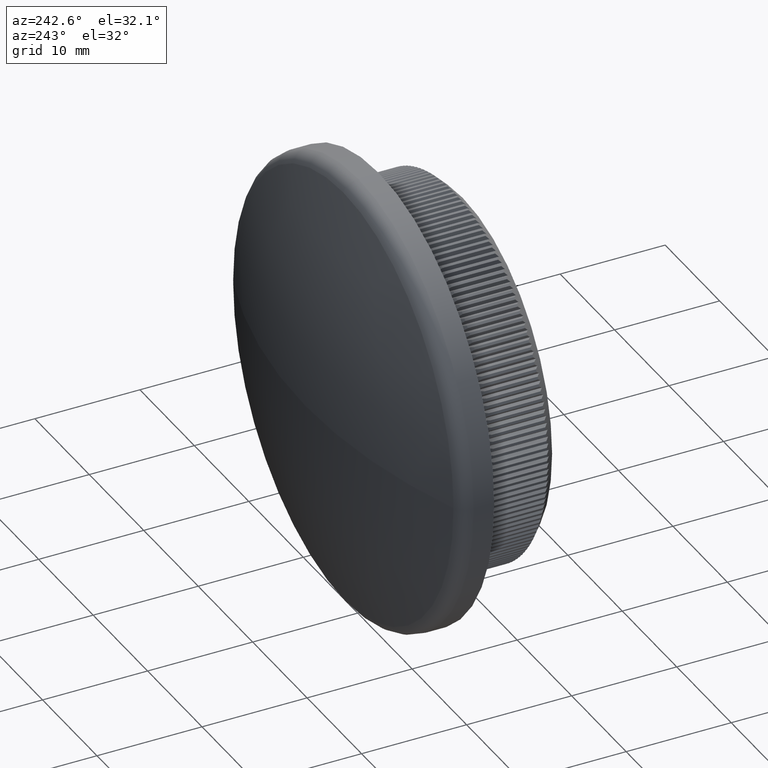
[diagram: clean part render]
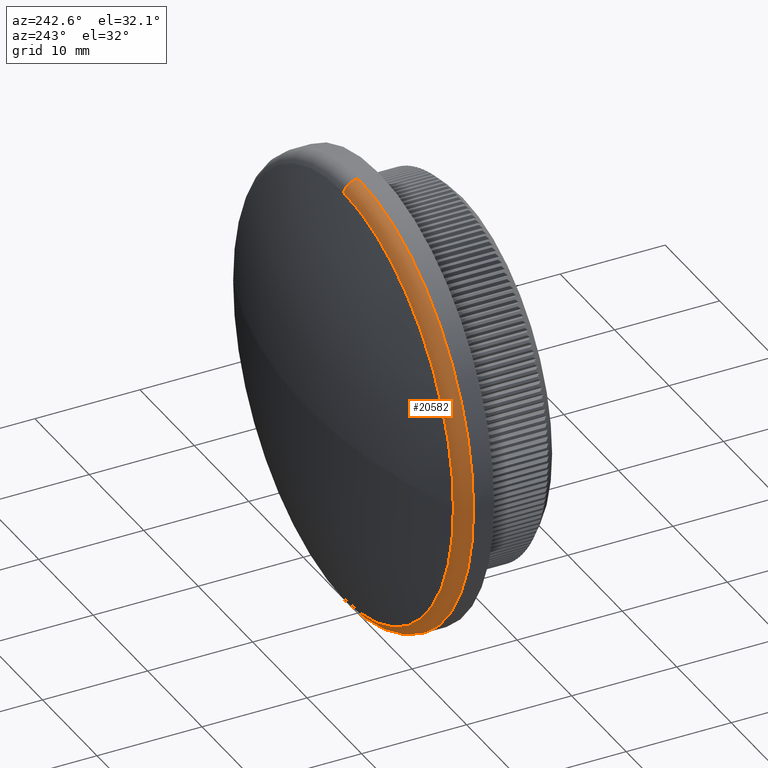
[diagram: same view with one face highlighted and labeled with its STEP entity id]
A machine part, auxiliary view. The second image highlights one B-rep face of the part: STEP entity #20582.
In plain terms, the highlighted toroidal blend (fillet) surface has major radius 19.7 mm and minor (blend) radius 1.5 mm.
Its self-contained STEP definition (entity closure, byte-faithful):
#391 = EDGE_CURVE ( 'NONE', #7101, #25193, #1650, .T. ) ;
#651 = CARTESIAN_POINT ( 'NONE',  ( 2.596251214192389200E-015, 9.966330070852492900, 21.20000000000000300 ) ) ;
#754 = CARTESIAN_POINT ( 'NONE',  ( 0.0000000000000000000, 11.37281375303810000, 0.0000000000000000000 ) ) ;
#1650 = CIRCLE ( 'NONE', #10605, 21.20000000000000300 ) ;
#1917 = EDGE_CURVE ( 'NONE', #26280, #16036, #17581, .T. ) ;
#2995 = CARTESIAN_POINT ( 'NONE',  ( 2.412554194320286400E-015, 9.966330070852492900, 19.70000000000000300 ) ) ;
#3452 = AXIS2_PLACEMENT_3D ( 'NONE', #11331, #20913, #28071 ) ;
#3827 = DIRECTION ( 'NONE',  ( 0.0000000000000000000, 0.0000000000000000000, -1.000000000000000000 ) ) ;
#4497 = CARTESIAN_POINT ( 'NONE',  ( 0.0000000000000000000, 9.966330070852492900, -21.20000000000000300 ) ) ;
#5190 = DIRECTION ( 'NONE',  ( 1.000000000000000000, 0.0000000000000000000, -1.224646799147353500E-016 ) ) ;
#5672 = ORIENTED_EDGE ( 'NONE', *, *, #22200, .T. ) ;
#6011 = AXIS2_PLACEMENT_3D ( 'NONE', #754, #17136, #21714 ) ;
#6121 = CIRCLE ( 'NONE', #19366, 1.500000000000001300 ) ;
#7101 = VERTEX_POINT ( 'NONE', #651 ) ;
#9390 = CARTESIAN_POINT ( 'NONE',  ( 0.0000000000000000000, 9.966330070852492900, -19.70000000000000300 ) ) ;
#10605 = AXIS2_PLACEMENT_3D ( 'NONE', #20178, #20275, #15189 ) ;
#11316 = DIRECTION ( 'NONE',  ( 0.0000000000000000000, 1.000000000000000000, 0.0000000000000000000 ) ) ;
#11331 = CARTESIAN_POINT ( 'NONE',  ( 0.0000000000000000000, 9.966330070852492900, 0.0000000000000000000 ) ) ;
#11764 = DIRECTION ( 'NONE',  ( -1.000000000000000000, 0.0000000000000000000, 0.0000000000000000000 ) ) ;
#13633 = AXIS2_PLACEMENT_3D ( 'NONE', #9390, #11764, #14111 ) ;
#14111 = DIRECTION ( 'NONE',  ( 0.0000000000000000000, 0.0000000000000000000, 1.000000000000000000 ) ) ;
#14607 = ORIENTED_EDGE ( 'NONE', *, *, #22686, .F. ) ;
#15189 = DIRECTION ( 'NONE',  ( 0.0000000000000000000, 0.0000000000000000000, -1.000000000000000000 ) ) ;
#15561 = CARTESIAN_POINT ( 'NONE',  ( -20.22134791813689200, 11.37281375303809700, 2.476400900239134100E-015 ) ) ;
#16036 = VERTEX_POINT ( 'NONE', #15561 ) ;
#16871 = DIRECTION ( 'NONE',  ( -1.224646799147352000E-016, 0.0000000000000000000, -1.000000000000000000 ) ) ;
#17136 = DIRECTION ( 'NONE',  ( 0.0000000000000000000, 1.000000000000000000, 0.0000000000000000000 ) ) ;
#17581 = CIRCLE ( 'NONE', #6011, 20.22134791813691000 ) ;
#19366 = AXIS2_PLACEMENT_3D ( 'NONE', #2995, #5190, #16871 ) ;
#19991 = AXIS2_PLACEMENT_3D ( 'NONE', #25469, #11316, #3827 ) ;
#20063 = ORIENTED_EDGE ( 'NONE', *, *, #391, .F. ) ;
#20178 = CARTESIAN_POINT ( 'NONE',  ( 0.0000000000000000000, 9.966330070852492900, 0.0000000000000000000 ) ) ;
#20275 = DIRECTION ( 'NONE',  ( -0.0000000000000000000, -1.000000000000000000, -0.0000000000000000000 ) ) ;
#20582 = ADVANCED_FACE ( 'NONE', ( #20706 ), #25878, .T. ) ;
#20628 = VERTEX_POINT ( 'NONE', #25481 ) ;
#20706 = FACE_OUTER_BOUND ( 'NONE', #25350, .T. ) ;
#20913 = DIRECTION ( 'NONE',  ( -0.0000000000000000000, -1.000000000000000000, -0.0000000000000000000 ) ) ;
#21714 = DIRECTION ( 'NONE',  ( 0.0000000000000000000, 0.0000000000000000000, -1.000000000000000000 ) ) ;
#21726 = ORIENTED_EDGE ( 'NONE', *, *, #1917, .F. ) ;
#22200 = EDGE_CURVE ( 'NONE', #26280, #25193, #27775, .T. ) ;
#22686 = EDGE_CURVE ( 'NONE', #16036, #20628, #24786, .T. ) ;
#24786 = CIRCLE ( 'NONE', #19991, 20.22134791813691000 ) ;
#25193 = VERTEX_POINT ( 'NONE', #4497 ) ;
#25350 = EDGE_LOOP ( 'NONE', ( #27268, #14607, #21726, #5672, #20063 ) ) ;
#25469 = CARTESIAN_POINT ( 'NONE',  ( 0.0000000000000000000, 11.37281375303810000, 0.0000000000000000000 ) ) ;
#25481 = CARTESIAN_POINT ( 'NONE',  ( 2.536326057215763400E-015, 11.37281375303810000, 20.22134791813691000 ) ) ;
#25878 = TOROIDAL_SURFACE ( 'NONE', #3452, 19.70000000000000300, 1.500000000000000000 ) ;
#26280 = VERTEX_POINT ( 'NONE', #29343 ) ;
#26616 = EDGE_CURVE ( 'NONE', #20628, #7101, #6121, .T. ) ;
#27268 = ORIENTED_EDGE ( 'NONE', *, *, #26616, .F. ) ;
#27775 = CIRCLE ( 'NONE', #13633, 1.500000000000001300 ) ;
#28071 = DIRECTION ( 'NONE',  ( 0.0000000000000000000, 0.0000000000000000000, -1.000000000000000000 ) ) ;
#29343 = CARTESIAN_POINT ( 'NONE',  ( 0.0000000000000000000, 11.37281375303810000, -20.22134791813691000 ) ) ;